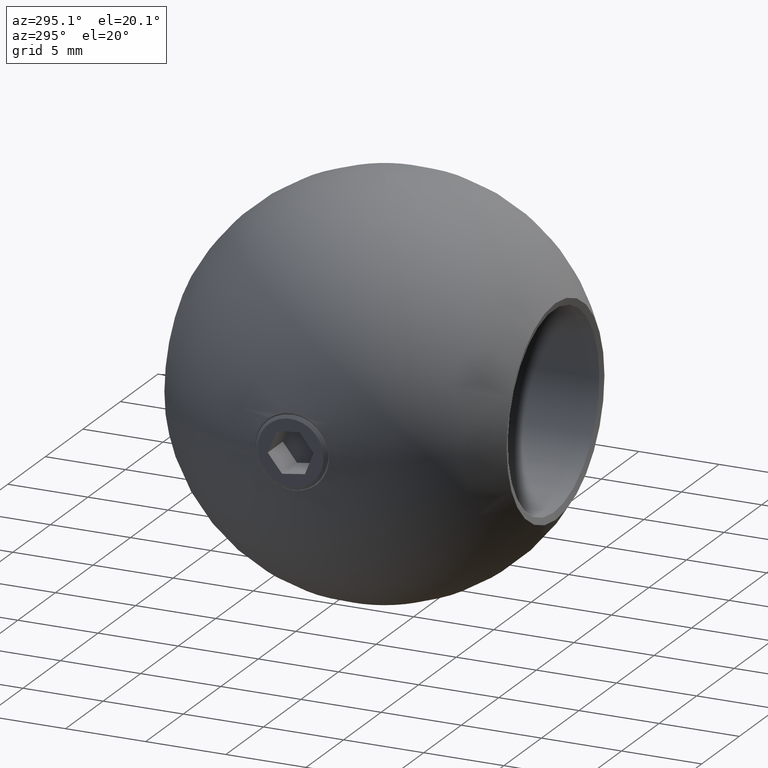
[diagram: clean part render]
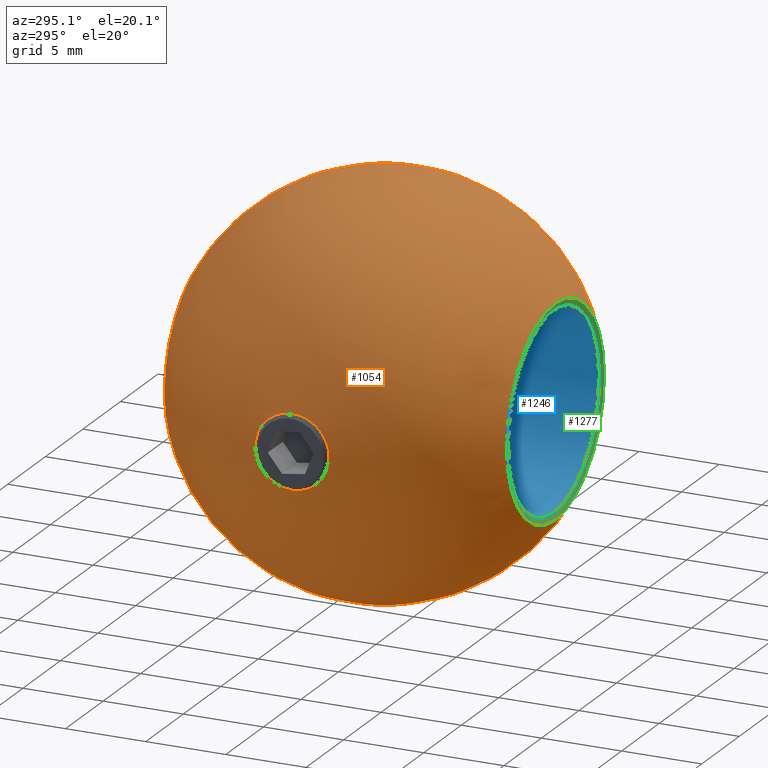
[diagram: same view with three faces highlighted in distinct colors, each labeled with its STEP entity id]
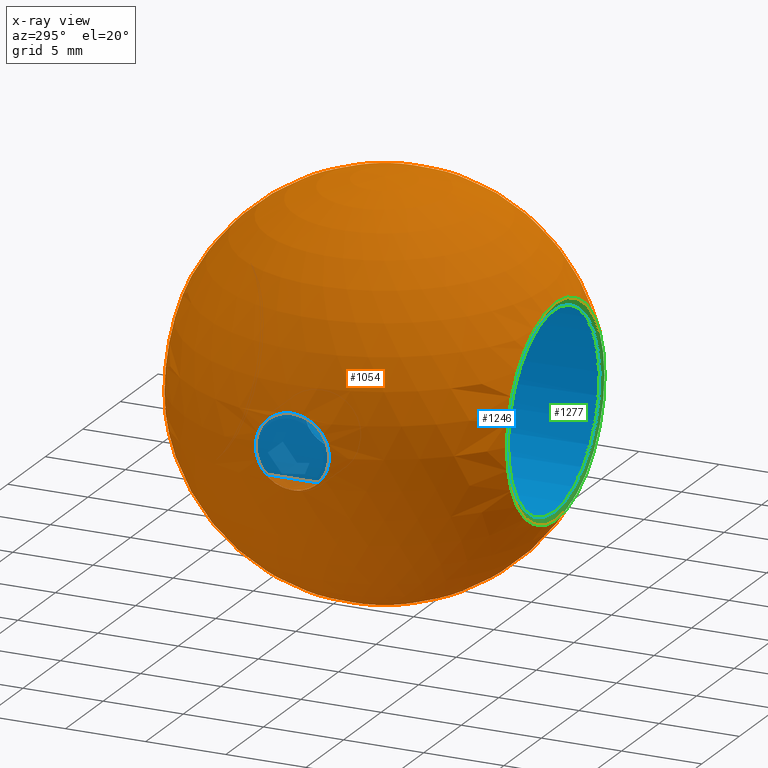
[diagram: x-ray of the same camera — body ghosted, the three highlighted faces saturated]
A machine part, auxiliary view with three faces highlighted in distinct colors.
The next image is the same camera in x-ray (body ghosted, the three faces saturated) — at least one of them is partly hidden behind the body in this view.
Their STEP definitions:

[orange] entity #1054 — the highlighted spherical surface has radius 12.5 mm.
#5 = DIRECTION ( 'NONE',  ( -0.000000000000000000, 1.000000000000000000, -0.000000000000000000 ) ) ;
#66 = DIRECTION ( 'NONE',  ( 1.000000000000000000, 0.000000000000000000, 0.000000000000000000 ) ) ;
#105 = DIRECTION ( 'NONE',  ( 0.000000000000000000, 0.000000000000000000, 1.000000000000000000 ) ) ;
#115 = CARTESIAN_POINT ( 'NONE',  ( 0.000000000000000000, 1.837157802970145859, 0.000000000000000000 ) ) ;
#160 = DIRECTION ( 'NONE',  ( 0.000000000000000000, -1.000000000000000000, 0.000000000000000000 ) ) ;
#210 = CARTESIAN_POINT ( 'NONE',  ( 0.000000000000000000, 1.837157802970145859, 6.523327086789349138 ) ) ;
#241 = FACE_OUTER_BOUND ( 'NONE', #629, .T. ) ;
#308 = EDGE_CURVE ( 'NONE', #419, #419, #727, .T. ) ;
#336 = EDGE_CURVE ( 'NONE', #476, #476, #696, .T. ) ;
#359 = SPHERICAL_SURFACE ( 'NONE', #601, 12.50000000000000000 ) ;
#390 = FACE_BOUND ( 'NONE', #1063, .T. ) ;
#419 = VERTEX_POINT ( 'NONE', #210 ) ;
#476 = VERTEX_POINT ( 'NONE', #790 ) ;
#507 = DIRECTION ( 'NONE',  ( -1.000000000000000000, -0.000000000000000000, -0.000000000000000000 ) ) ;
#512 = DIRECTION ( 'NONE',  ( 0.000000000000000000, 0.000000000000000000, -1.000000000000000000 ) ) ;
#601 = AXIS2_PLACEMENT_3D ( 'NONE', #1267, #1274, #66 ) ;
#629 = EDGE_LOOP ( 'NONE', ( #1010 ) ) ;
#696 = CIRCLE ( 'NONE', #721, 2.309749053581767519 ) ;
#710 = VERTEX_POINT ( 'NONE', #1094 ) ;
#721 = AXIS2_PLACEMENT_3D ( 'NONE', #802, #507, #512 ) ;
#724 = CIRCLE ( 'NONE', #1253, 6.416763233405441191 ) ;
#727 = CIRCLE ( 'NONE', #1055, 6.523327086789349138 ) ;
#755 = CARTESIAN_POINT ( 'NONE',  ( 0.000000000000000000, 23.22730859099412015, 0.000000000000000000 ) ) ;
#790 = CARTESIAN_POINT ( 'NONE',  ( -12.28474905358176983, 12.50000000000000000, -2.309749053581767519 ) ) ;
#802 = CARTESIAN_POINT ( 'NONE',  ( -12.28474905358176983, 12.50000000000000000, 0.000000000000000000 ) ) ;
#869 = EDGE_CURVE ( 'NONE', #710, #710, #724, .T. ) ;
#885 = FACE_OUTER_BOUND ( 'NONE', #1062, .T. ) ;
#1010 = ORIENTED_EDGE ( 'NONE', *, *, #869, .T. ) ;
#1054 = ADVANCED_FACE ( 'NONE', ( #885, #241, #390 ), #359, .T. ) ;
#1055 = AXIS2_PLACEMENT_3D ( 'NONE', #115, #5, #105 ) ;
#1062 = EDGE_LOOP ( 'NONE', ( #1075 ) ) ;
#1063 = EDGE_LOOP ( 'NONE', ( #1112 ) ) ;
#1075 = ORIENTED_EDGE ( 'NONE', *, *, #308, .T. ) ;
#1094 = CARTESIAN_POINT ( 'NONE',  ( 0.000000000000000000, 23.22730859099412015, -6.416763233405441191 ) ) ;
#1112 = ORIENTED_EDGE ( 'NONE', *, *, #336, .F. ) ;
#1247 = DIRECTION ( 'NONE',  ( 0.000000000000000000, 0.000000000000000000, -1.000000000000000000 ) ) ;
#1253 = AXIS2_PLACEMENT_3D ( 'NONE', #755, #160, #1247 ) ;
#1267 = CARTESIAN_POINT ( 'NONE',  ( 0.000000000000000000, 12.50000000000000000, 0.000000000000000000 ) ) ;
#1274 = DIRECTION ( 'NONE',  ( 0.000000000000000000, 0.000000000000000000, 1.000000000000000000 ) ) ;

[blue] entity #1246 — the highlighted cylindrical surface (bore or boss wall) has radius 6.1 mm, axis along (-0, -1, -0).
#1 = EDGE_CURVE ( 'NONE', #393, #393, #816, .T. ) ;
#3 = CARTESIAN_POINT ( 'NONE',  ( 0.000000000000000000, 0.000000000000000000, 0.000000000000000000 ) ) ;
#10 = CARTESIAN_POINT ( 'NONE',  ( -5.727128425310541893, 12.36009964826777008, 2.099999999999996092 ) ) ;
#15 = CARTESIAN_POINT ( 'NONE',  ( -5.766099166669313547, 11.81906058846698571, 1.991283266471043145 ) ) ;
#20 = ORIENTED_EDGE ( 'NONE', *, *, #1195, .T. ) ;
#41 = CARTESIAN_POINT ( 'NONE',  ( -5.822389890575835558, 11.44518384101859709, 1.821013902350303137 ) ) ;
#49 = CARTESIAN_POINT ( 'NONE',  ( -5.732155192081762607, 12.77579574477644542, -2.086440812357288177 ) ) ;
#53 = CARTESIAN_POINT ( 'NONE',  ( -6.099968119922451137, 10.40009260405288494, 0.1395962510678910862 ) ) ;
#59 = DIRECTION ( 'NONE',  ( 0.000000000000000000, 0.000000000000000000, 1.000000000000000000 ) ) ;
#74 = DIRECTION ( 'NONE',  ( 0.000000000000000000, 0.000000000000000000, -1.000000000000000000 ) ) ;
#120 = CARTESIAN_POINT ( 'NONE',  ( -5.867854272617280209, 11.21776489829615464, 1.668712649247883872 ) ) ;
#152 = CARTESIAN_POINT ( 'NONE',  ( -5.867986101484307326, 11.21719190031058133, -1.668241535876546777 ) ) ;
#158 = CARTESIAN_POINT ( 'NONE',  ( -5.727128425310543669, 12.63990035173222815, 2.099999999999995648 ) ) ;
#162 = CARTESIAN_POINT ( 'NONE',  ( -5.892291792341945111, 13.88844719982160747, 1.581373539742215284 ) ) ;
#174 = CARTESIAN_POINT ( 'NONE',  ( 0.000000000000000000, 22.91054535758867772, 0.000000000000000000 ) ) ;
#180 = EDGE_CURVE ( 'NONE', #902, #902, #920, .T. ) ;
#229 = AXIS2_PLACEMENT_3D ( 'NONE', #969, #573, #74 ) ;
#231 = CARTESIAN_POINT ( 'NONE',  ( -6.076896902534478784, 10.46792609732675139, -0.5474239279535677571 ) ) ;
#250 = CARTESIAN_POINT ( 'NONE',  ( -5.964740871126513078, 10.82288715263443812, 1.292710000279391203 ) ) ;
#257 = CARTESIAN_POINT ( 'NONE',  ( -6.063383302011104092, 14.49176998277606820, -0.6796631484887009078 ) ) ;
#306 = CARTESIAN_POINT ( 'NONE',  ( -5.727128425310544557, 12.50000000000000000, 2.099999999999996092 ) ) ;
#322 = CARTESIAN_POINT ( 'NONE',  ( -5.801272074677454427, 13.43300763194308800, -1.886353844427323567 ) ) ;
#343 = CARTESIAN_POINT ( 'NONE',  ( -5.727148712768876493, 12.36138413165845051, -2.099944671957224784 ) ) ;
#351 = CARTESIAN_POINT ( 'NONE',  ( -5.801534238142263433, 11.56534584008239719, 1.885552738815660101 ) ) ;
#356 = CARTESIAN_POINT ( 'NONE',  ( -5.965097173061048252, 14.17859668081171165, -1.291363131475780968 ) ) ;
#393 = VERTEX_POINT ( 'NONE', #306 ) ;
#399 = EDGE_LOOP ( 'NONE', ( #504 ) ) ;
#407 = CARTESIAN_POINT ( 'NONE',  ( -5.727128425310542781, 12.49999999999999822, 2.099999999999996092 ) ) ;
#416 = CARTESIAN_POINT ( 'NONE',  ( -6.063123729557490904, 10.50903282241186432, 0.6817134896156145096 ) ) ;
#422 = CARTESIAN_POINT ( 'NONE',  ( -5.940587667174721531, 10.91907386242973743, -1.389000889756206503 ) ) ;
#447 = CARTESIAN_POINT ( 'NONE',  ( -6.009060183421620849, 10.67954136842856627, -1.055699549185350028 ) ) ;
#453 = CARTESIAN_POINT ( 'NONE',  ( -5.892420369737272345, 11.11102149963629415, 1.580882787379448429 ) ) ;
#461 = CARTESIAN_POINT ( 'NONE',  ( -5.801338896325543004, 11.56663269047100151, -1.886144760085742167 ) ) ;
#504 = ORIENTED_EDGE ( 'NONE', *, *, #1, .F. ) ;
#519 = CARTESIAN_POINT ( 'NONE',  ( -5.964851947304084412, 10.83125073946466621, -1.282125997270115558 ) ) ;
#525 = CARTESIAN_POINT ( 'NONE',  ( -5.822627757755665101, 11.44390827159640267, -1.820246330541562152 ) ) ;
#548 = CARTESIAN_POINT ( 'NONE',  ( -5.751601860987040737, 13.04680455357458513, 2.032214760445102186 ) ) ;
#554 = CARTESIAN_POINT ( 'NONE',  ( -5.766090314719157561, 11.81923641256613600, -1.991300461638193964 ) ) ;
#557 = CARTESIAN_POINT ( 'NONE',  ( -6.076800061481371529, 14.53178472718830783, -0.5484387402251353905 ) ) ;
#573 = DIRECTION ( 'NONE',  ( 0.000000000000000000, -1.000000000000000000, 0.000000000000000000 ) ) ;
#608 = CARTESIAN_POINT ( 'NONE',  ( -5.751620808453802525, 11.95296540082659043, 2.032161617212750127 ) ) ;
#620 = CARTESIAN_POINT ( 'NONE',  ( -6.012297794750661950, 14.33244294904010374, -1.062314208376559987 ) ) ;
#648 = CARTESIAN_POINT ( 'NONE',  ( -6.012548483291478618, 14.33322076293714531, 1.060372969231632601 ) ) ;
#653 = CARTESIAN_POINT ( 'NONE',  ( -6.029347686900798031, 10.61437710838652393, -0.9346700222730530694 ) ) ;
#658 = CARTESIAN_POINT ( 'NONE',  ( -6.063218112836685769, 14.49125680394672600, 0.6809321850383618369 ) ) ;
#694 = CIRCLE ( 'NONE', #229, 6.100000000000001421 ) ;
#705 = AXIS2_PLACEMENT_3D ( 'NONE', #174, #1068, #59 ) ;
#722 = CARTESIAN_POINT ( 'NONE',  ( -5.766050625728893486, 13.18055454237487112, 1.991425039934314745 ) ) ;
#728 = CARTESIAN_POINT ( 'NONE',  ( -5.751856268131024130, 11.95023145513848561, -2.031500039660917079 ) ) ;
#738 = AXIS2_PLACEMENT_3D ( 'NONE', #3, #1081, #995 ) ;
#750 = CARTESIAN_POINT ( 'NONE',  ( -5.822349329435470899, 13.55455441030930963, 1.821129747270662014 ) ) ;
#753 = CARTESIAN_POINT ( 'NONE',  ( -6.095133530366307006, 14.58597769484990536, -0.2786239149894449985 ) ) ;
#759 = CARTESIAN_POINT ( 'NONE',  ( -5.801515234560912226, 13.43455533999912532, 1.885612497652571218 ) ) ;
#761 = EDGE_LOOP ( 'NONE', ( #20 ) ) ;
#801 = CARTESIAN_POINT ( 'NONE',  ( 0.000000000000000000, 22.91054535758867772, 6.100000000000001421 ) ) ;
#814 = CARTESIAN_POINT ( 'NONE',  ( -6.100001083319570583, 14.60000314678541500, -0.1383388999315585122 ) ) ;
#816 = B_SPLINE_CURVE_WITH_KNOTS ( 'NONE', 3,
 ( #407, #10, #1004, #608, #15, #351, #41, #120, #453, #250, #912, #416, #916, #1116, #53, #1043, #1212, #231, #1151, #653, #447, #519, #422, #944, #152, #525, #461, #554, #728, #819, #343, #1017, #49, #1049, #1038, #322, #1145, #1011, #1120, #356, #620, #257, #557, #753, #814, #1220, #1251, #843, #658, #648, #1155, #162, #1258, #750, #759, #722, #548, #857, #158, #948 ),
 .UNSPECIFIED., .T., .F.,
 ( 4, 2, 2, 2, 2, 2, 2, 2, 2, 2, 2, 2, 2, 2, 2, 2, 2, 2, 2, 2, 2, 2, 2, 2, 2, 2, 2, 2, 2, 4 ),
 ( 0.000000000000000000, 0.0004134715782034076781, 0.0008269431564068153561, 0.001240414734610223143, 0.001653886312813630712, 0.002480829469220446285, 0.002894301047423854505, 0.003307772625627262292, 0.003721244203830670078, 0.004134715782034076997, 0.004548187360237485218, 0.004961658938440892570, 0.005375130516644300790, 0.005788602094847708143, 0.006202073673051115496, 0.006615545251254524584, 0.007029016829457931936, 0.007442488407661340157, 0.007855959985864746642, 0.008269431564068153995, 0.009096374720474970435, 0.009509846298678377788, 0.009923317876881785141, 0.01033678945508519249, 0.01075026103328860158, 0.01157720418969541802, 0.01199067576789882711, 0.01240414734610223620, 0.01281761892430564528, 0.01323109050250905437 ),
 .UNSPECIFIED. ) ;
#819 = CARTESIAN_POINT ( 'NONE',  ( -5.732257939332100705, 12.22219430042404476, -2.086159595367661712 ) ) ;
#843 = CARTESIAN_POINT ( 'NONE',  ( -6.076918563033467890, 14.53213979337880701, 0.5473693078011713231 ) ) ;
#857 = CARTESIAN_POINT ( 'NONE',  ( -5.732259313557222846, 12.77725095196196747, 2.086150512790727607 ) ) ;
#863 = CYLINDRICAL_SURFACE ( 'NONE', #738, 6.100000000000001421 ) ;
#902 = VERTEX_POINT ( 'NONE', #801 ) ;
#912 = CARTESIAN_POINT ( 'NONE',  ( -6.012549163872288993, 10.66678664165304902, 1.060218430044951976 ) ) ;
#916 = CARTESIAN_POINT ( 'NONE',  ( -6.076840449181994508, 10.46809325987253203, 0.5482139454544888713 ) ) ;
#920 = CIRCLE ( 'NONE', #705, 6.100000000000001421 ) ;
#936 = FACE_OUTER_BOUND ( 'NONE', #761, .T. ) ;
#940 = EDGE_LOOP ( 'NONE', ( #1093 ) ) ;
#944 = CARTESIAN_POINT ( 'NONE',  ( -5.892112931618116889, 11.11228950425318018, -1.582058944600510220 ) ) ;
#948 = CARTESIAN_POINT ( 'NONE',  ( -5.727128425310542781, 12.49999999999999822, 2.099999999999996092 ) ) ;
#954 = VERTEX_POINT ( 'NONE', #1200 ) ;
#969 = CARTESIAN_POINT ( 'NONE',  ( 0.000000000000000000, 1.956873785573113089, 0.000000000000000000 ) ) ;
#995 = DIRECTION ( 'NONE',  ( 0.000000000000000000, 0.000000000000000000, -1.000000000000000000 ) ) ;
#1004 = CARTESIAN_POINT ( 'NONE',  ( -5.732255343690562555, 12.22277039529828890, 2.086161891474984653 ) ) ;
#1011 = CARTESIAN_POINT ( 'NONE',  ( -5.867875291569456309, 13.78229495843369357, -1.668626794427777948 ) ) ;
#1017 = CARTESIAN_POINT ( 'NONE',  ( -5.727108261277594536, 12.63693435354209882, -2.100054991436562268 ) ) ;
#1038 = CARTESIAN_POINT ( 'NONE',  ( -5.765940518388004143, 13.17957017181460344, -1.991737545267867171 ) ) ;
#1043 = CARTESIAN_POINT ( 'NONE',  ( -6.100031558720508507, 10.39990832941290044, -0.1367960525611588429 ) ) ;
#1049 = CARTESIAN_POINT ( 'NONE',  ( -5.751704153169117539, 13.04823426772663097, -2.031929561770580595 ) ) ;
#1061 = FACE_OUTER_BOUND ( 'NONE', #940, .T. ) ;
#1068 = DIRECTION ( 'NONE',  ( -0.000000000000000000, 1.000000000000000000, -0.000000000000000000 ) ) ;
#1081 = DIRECTION ( 'NONE',  ( -0.000000000000000000, -1.000000000000000000, -0.000000000000000000 ) ) ;
#1093 = ORIENTED_EDGE ( 'NONE', *, *, #180, .T. ) ;
#1116 = CARTESIAN_POINT ( 'NONE',  ( -6.095245805760789892, 10.41369307425643953, 0.2765988831515125423 ) ) ;
#1120 = CARTESIAN_POINT ( 'NONE',  ( -5.892044383134017238, 13.88744824985080051, -1.582344381772770481 ) ) ;
#1145 = CARTESIAN_POINT ( 'NONE',  ( -5.822563031845001902, 13.55572732408572456, -1.820449273307441995 ) ) ;
#1151 = CARTESIAN_POINT ( 'NONE',  ( -6.063472000028593989, 10.50795761717488297, -0.6789321651984911998 ) ) ;
#1155 = CARTESIAN_POINT ( 'NONE',  ( -5.964762502799723087, 14.17723700089601202, 1.292666870613847552 ) ) ;
#1177 = FACE_BOUND ( 'NONE', #399, .T. ) ;
#1195 = EDGE_CURVE ( 'NONE', #954, #954, #694, .T. ) ;
#1200 = CARTESIAN_POINT ( 'NONE',  ( 0.000000000000000000, 1.956873785573113089, -6.100000000000001421 ) ) ;
#1212 = CARTESIAN_POINT ( 'NONE',  ( -6.095207095568357047, 10.41380779414758884, -0.2771270161179110181 ) ) ;
#1220 = CARTESIAN_POINT ( 'NONE',  ( -6.099998916306489605, 14.59999685212836695, 0.1384344205530642635 ) ) ;
#1246 = ADVANCED_FACE ( 'NONE', ( #936, #1061, #1177 ), #863, .F. ) ;
#1251 = CARTESIAN_POINT ( 'NONE',  ( -6.095294128472156459, 14.58644756240842355, 0.2755755219106799103 ) ) ;
#1258 = CARTESIAN_POINT ( 'NONE',  ( -5.867642891633141566, 13.78123627565648768, 1.669440674788662093 ) ) ;

[green] entity #1277 — the highlighted conical surface has half-angle 74.209 deg.
#5 = DIRECTION ( 'NONE',  ( -0.000000000000000000, 1.000000000000000000, -0.000000000000000000 ) ) ;
#6 = FACE_BOUND ( 'NONE', #881, .T. ) ;
#74 = DIRECTION ( 'NONE',  ( 0.000000000000000000, 0.000000000000000000, -1.000000000000000000 ) ) ;
#97 = CARTESIAN_POINT ( 'NONE',  ( 0.000000000000000000, 1.956873785573113089, 0.000000000000000000 ) ) ;
#105 = DIRECTION ( 'NONE',  ( 0.000000000000000000, 0.000000000000000000, 1.000000000000000000 ) ) ;
#115 = CARTESIAN_POINT ( 'NONE',  ( 0.000000000000000000, 1.837157802970145859, 0.000000000000000000 ) ) ;
#200 = EDGE_LOOP ( 'NONE', ( #587 ) ) ;
#210 = CARTESIAN_POINT ( 'NONE',  ( 0.000000000000000000, 1.837157802970145859, 6.523327086789349138 ) ) ;
#229 = AXIS2_PLACEMENT_3D ( 'NONE', #969, #573, #74 ) ;
#308 = EDGE_CURVE ( 'NONE', #419, #419, #727, .T. ) ;
#419 = VERTEX_POINT ( 'NONE', #210 ) ;
#558 = AXIS2_PLACEMENT_3D ( 'NONE', #97, #1083, #599 ) ;
#573 = DIRECTION ( 'NONE',  ( 0.000000000000000000, -1.000000000000000000, 0.000000000000000000 ) ) ;
#587 = ORIENTED_EDGE ( 'NONE', *, *, #308, .F. ) ;
#599 = DIRECTION ( 'NONE',  ( 0.000000000000000000, 0.000000000000000000, -1.000000000000000000 ) ) ;
#694 = CIRCLE ( 'NONE', #229, 6.100000000000001421 ) ;
#727 = CIRCLE ( 'NONE', #1055, 6.523327086789349138 ) ;
#881 = EDGE_LOOP ( 'NONE', ( #1272 ) ) ;
#888 = CONICAL_SURFACE ( 'NONE', #558, 6.100000000000001421, 1.295195083554480098 ) ;
#919 = FACE_OUTER_BOUND ( 'NONE', #200, .T. ) ;
#954 = VERTEX_POINT ( 'NONE', #1200 ) ;
#969 = CARTESIAN_POINT ( 'NONE',  ( 0.000000000000000000, 1.956873785573113089, 0.000000000000000000 ) ) ;
#1055 = AXIS2_PLACEMENT_3D ( 'NONE', #115, #5, #105 ) ;
#1083 = DIRECTION ( 'NONE',  ( 0.000000000000000000, -1.000000000000000000, 0.000000000000000000 ) ) ;
#1195 = EDGE_CURVE ( 'NONE', #954, #954, #694, .T. ) ;
#1200 = CARTESIAN_POINT ( 'NONE',  ( 0.000000000000000000, 1.956873785573113089, -6.100000000000001421 ) ) ;
#1272 = ORIENTED_EDGE ( 'NONE', *, *, #1195, .F. ) ;
#1277 = ADVANCED_FACE ( 'NONE', ( #919, #6 ), #888, .F. ) ;